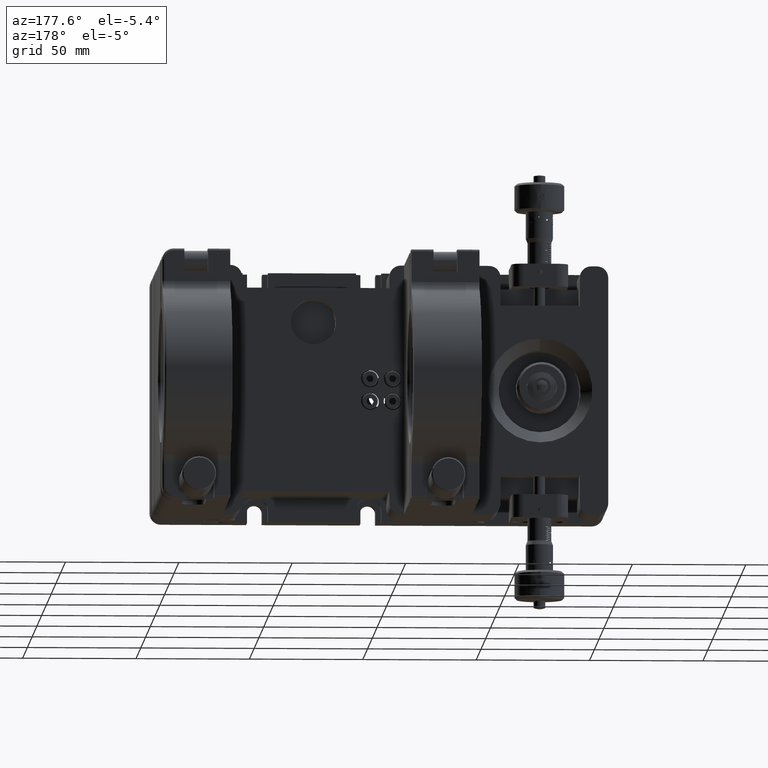
[diagram: clean part render]
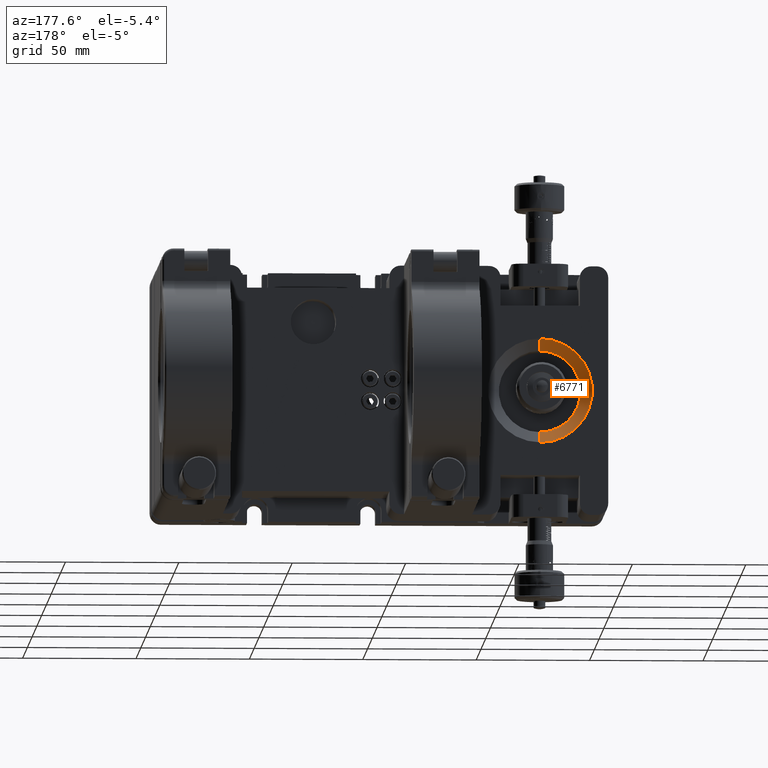
[diagram: same view with one face highlighted and labeled with its STEP entity id]
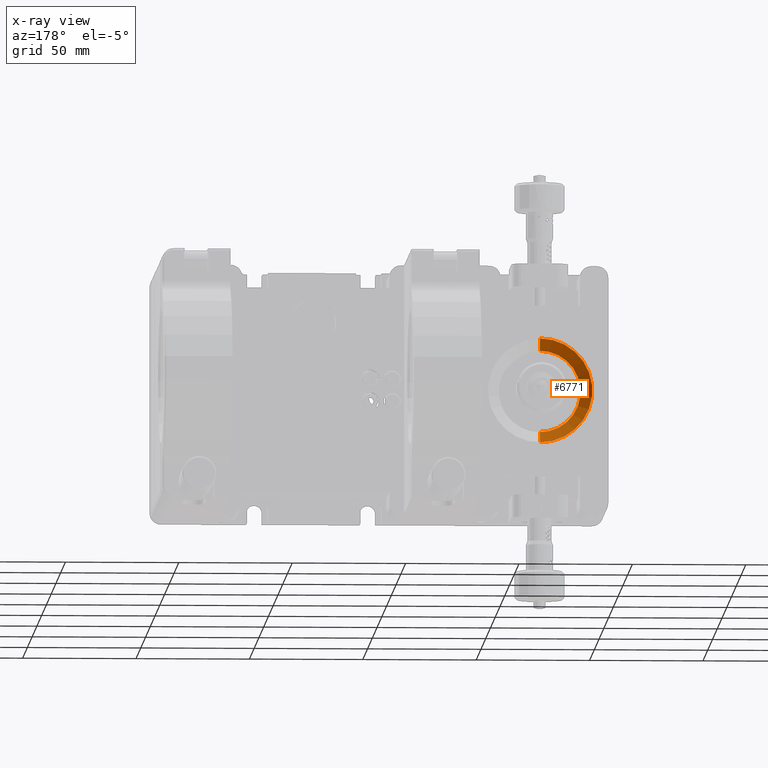
[diagram: x-ray of the same camera — body ghosted, the highlighted face saturated]
A machine part, auxiliary view. The second image highlights one B-rep face of the part: STEP entity #6771.
The next image is the same camera in x-ray: the body ghosted, the highlighted face saturated — about 0% of this face is hidden behind the body in this view.
In plain terms, the highlighted conical surface has half-angle 45 deg.
Its self-contained STEP definition (entity closure, byte-faithful):
#183 = CARTESIAN_POINT ( 'NONE',  ( -70.00000000000000000, 41.09999999999966747, -18.00000000000000355 ) ) ;
#1006 = FACE_OUTER_BOUND ( 'NONE', #11059, .T. ) ;
#3214 = VERTEX_POINT ( 'NONE', #183 ) ;
#4427 = VERTEX_POINT ( 'NONE', #35823 ) ;
#5102 = DIRECTION ( 'NONE',  ( 8.659560562354952580E-17, 0.7071067811865460184, -0.7071067811865490160 ) ) ;
#6091 = CARTESIAN_POINT ( 'NONE',  ( -70.00000000000000000, 46.09999999999966036, 3.089976191583687637E-15 ) ) ;
#6771 = ADVANCED_FACE ( 'NONE', ( #1006 ), #32283, .F. ) ;
#9040 = ORIENTED_EDGE ( 'NONE', *, *, #9297, .F. ) ;
#9194 = CARTESIAN_POINT ( 'NONE',  ( -70.00000000000000000, 41.09999999999966747, -18.00000000000000355 ) ) ;
#9297 = EDGE_CURVE ( 'NONE', #3214, #20858, #41452, .T. ) ;
#9936 = DIRECTION ( 'NONE',  ( 0.000000000000000000, 0.000000000000000000, -1.000000000000000000 ) ) ;
#11059 = EDGE_LOOP ( 'NONE', ( #9040, #20048, #39320, #45836 ) ) ;
#12320 = DIRECTION ( 'NONE',  ( 0.000000000000000000, 0.000000000000000000, -1.000000000000000000 ) ) ;
#12636 = DIRECTION ( 'NONE',  ( 0.000000000000000000, 0.7071067811865460184, 0.7071067811865490160 ) ) ;
#13603 = AXIS2_PLACEMENT_3D ( 'NONE', #32318, #47954, #12320 ) ;
#16555 = VERTEX_POINT ( 'NONE', #19160 ) ;
#17563 = AXIS2_PLACEMENT_3D ( 'NONE', #32061, #39502, #47446 ) ;
#17889 = EDGE_CURVE ( 'NONE', #3214, #4427, #36147, .T. ) ;
#19160 = CARTESIAN_POINT ( 'NONE',  ( -70.00000000000000000, 46.09999999999966036, 23.00000000000002842 ) ) ;
#20048 = ORIENTED_EDGE ( 'NONE', *, *, #17889, .T. ) ;
#20603 = LINE ( 'NONE', #43935, #49657 ) ;
#20858 = VERTEX_POINT ( 'NONE', #27828 ) ;
#25352 = DIRECTION ( 'NONE',  ( 0.000000000000000000, -1.000000000000000000, 0.000000000000000000 ) ) ;
#27828 = CARTESIAN_POINT ( 'NONE',  ( -70.00000000000000000, 41.09999999999966747, 18.00000000000001066 ) ) ;
#32061 = CARTESIAN_POINT ( 'NONE',  ( -70.00000000000000000, 41.09999999999966747, 3.089976191583687637E-15 ) ) ;
#32283 = CONICAL_SURFACE ( 'NONE', #17563, 18.00000000000000711, 0.7853981633974503884 ) ;
#32318 = CARTESIAN_POINT ( 'NONE',  ( -70.00000000000000000, 41.09999999999966747, 3.089976191583687637E-15 ) ) ;
#34106 = EDGE_CURVE ( 'NONE', #20858, #16555, #20603, .T. ) ;
#35823 = CARTESIAN_POINT ( 'NONE',  ( -70.00000000000000000, 46.09999999999966036, -23.00000000000002132 ) ) ;
#36147 = LINE ( 'NONE', #9194, #49012 ) ;
#39320 = ORIENTED_EDGE ( 'NONE', *, *, #41615, .F. ) ;
#39502 = DIRECTION ( 'NONE',  ( 0.000000000000000000, 1.000000000000000000, 0.000000000000000000 ) ) ;
#41452 = CIRCLE ( 'NONE', #13603, 18.00000000000000711 ) ;
#41615 = EDGE_CURVE ( 'NONE', #16555, #4427, #44001, .T. ) ;
#43935 = CARTESIAN_POINT ( 'NONE',  ( -70.00000000000000000, 41.09999999999966747, 18.00000000000001066 ) ) ;
#44001 = CIRCLE ( 'NONE', #48900, 23.00000000000002132 ) ;
#45836 = ORIENTED_EDGE ( 'NONE', *, *, #34106, .F. ) ;
#47446 = DIRECTION ( 'NONE',  ( 0.000000000000000000, 0.000000000000000000, 1.000000000000000000 ) ) ;
#47954 = DIRECTION ( 'NONE',  ( 0.000000000000000000, 1.000000000000000000, 0.000000000000000000 ) ) ;
#48900 = AXIS2_PLACEMENT_3D ( 'NONE', #6091, #25352, #9936 ) ;
#49012 = VECTOR ( 'NONE', #5102, 1000.000000000000114 ) ;
#49657 = VECTOR ( 'NONE', #12636, 1000.000000000000114 ) ;